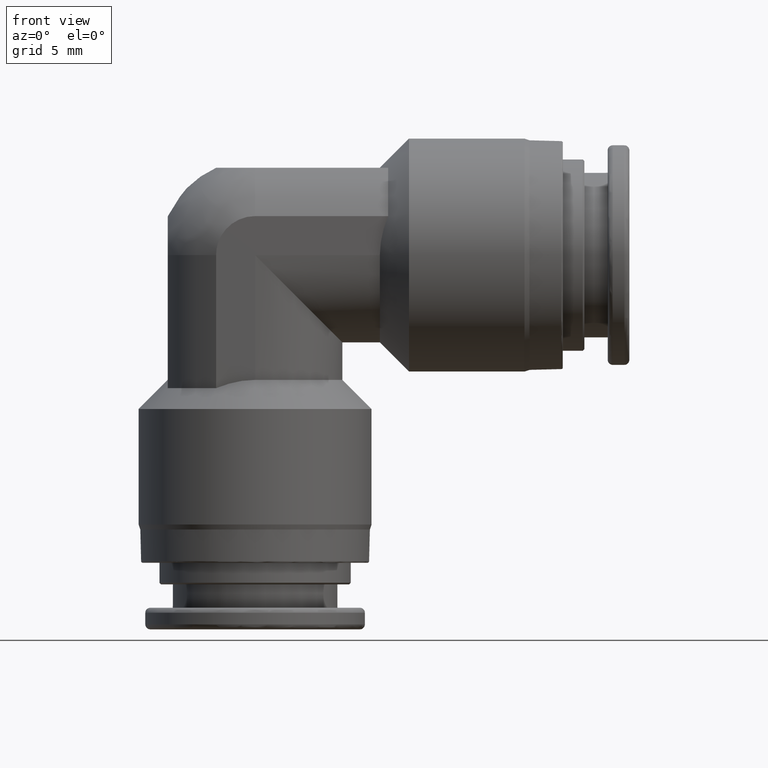
[diagram: clean part render]
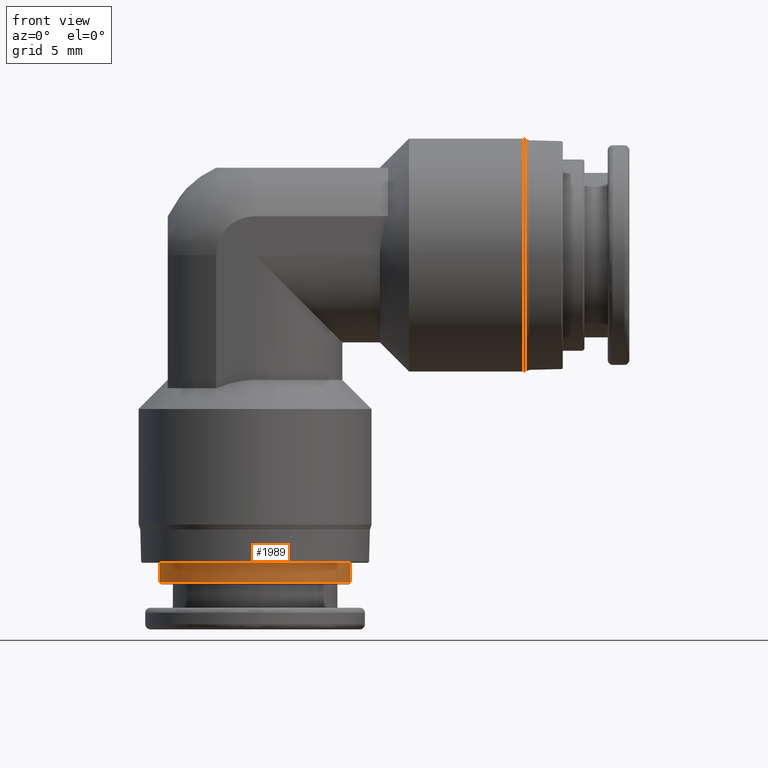
[diagram: same view with one face highlighted and labeled with its STEP entity id]
A machine part, front view. The second image highlights one B-rep face of the part: STEP entity #1989.
In plain terms, the highlighted cylindrical surface (partial cylindrical patch) has radius 5.75 mm, axis along (-0, 0, 1).
Its self-contained STEP definition (entity closure, byte-faithful):
#90 = VECTOR ( 'NONE', #1453, 39.37007874015748100 ) ;
#392 = CIRCLE ( 'NONE', #3135, 0.2263779527559055300 ) ;
#452 = ORIENTED_EDGE ( 'NONE', *, *, #1328, .T. ) ;
#651 = AXIS2_PLACEMENT_3D ( 'NONE', #1713, #1741, #2852 ) ;
#656 = AXIS2_PLACEMENT_3D ( 'NONE', #2709, #1839, #2090 ) ;
#684 = EDGE_CURVE ( 'NONE', #3626, #3101, #2496, .T. ) ;
#685 = VECTOR ( 'NONE', #2345, 39.37007874015748100 ) ;
#830 = LINE ( 'NONE', #1743, #90 ) ;
#903 = DIRECTION ( 'NONE',  ( -2.342906684632550000E-015, 0.0000000000000000000, 1.000000000000000000 ) ) ;
#1054 = EDGE_CURVE ( 'NONE', #2404, #2705, #830, .T. ) ;
#1328 = EDGE_CURVE ( 'NONE', #3626, #2404, #3387, .T. ) ;
#1453 = DIRECTION ( 'NONE',  ( -2.342906684632550000E-015, 0.0000000000000000000, 1.000000000000000000 ) ) ;
#1472 = ORIENTED_EDGE ( 'NONE', *, *, #1054, .T. ) ;
#1482 = CARTESIAN_POINT ( 'NONE',  ( 1.060764837530485400E-015, 0.0000000000000000000, -0.7283464566929128700 ) ) ;
#1713 = CARTESIAN_POINT ( 'NONE',  ( -4.191720272603307400E-016, 0.0000000000000000000, -0.09667944472955669600 ) ) ;
#1741 = DIRECTION ( 'NONE',  ( -2.342906684632550000E-015, 0.0000000000000000000, 1.000000000000000000 ) ) ;
#1743 = CARTESIAN_POINT ( 'NONE',  ( 0.2263779527559051100, 0.0000000000000000000, -0.09667944472955616900 ) ) ;
#1839 = DIRECTION ( 'NONE',  ( -2.342906684632550000E-015, 0.0000000000000000000, 1.000000000000000000 ) ) ;
#1920 = ORIENTED_EDGE ( 'NONE', *, *, #1958, .F. ) ;
#1958 = EDGE_CURVE ( 'NONE', #3101, #2705, #392, .T. ) ;
#1989 = ADVANCED_FACE ( 'NONE', ( #2430 ), #2640, .T. ) ;
#2046 = EDGE_LOOP ( 'NONE', ( #2613, #452, #1472, #1920 ) ) ;
#2090 = DIRECTION ( 'NONE',  ( 1.000000000000000000, 0.0000000000000000000, 2.413528314402514300E-015 ) ) ;
#2321 = CARTESIAN_POINT ( 'NONE',  ( -0.2263779527559044400, 2.772330352400505100E-017, -0.7283464566929134200 ) ) ;
#2345 = DIRECTION ( 'NONE',  ( -2.342906684632550000E-015, 0.0000000000000000000, 1.000000000000000000 ) ) ;
#2404 = VERTEX_POINT ( 'NONE', #3298 ) ;
#2430 = FACE_OUTER_BOUND ( 'NONE', #2046, .T. ) ;
#2496 = LINE ( 'NONE', #3208, #685 ) ;
#2556 = CARTESIAN_POINT ( 'NONE',  ( -0.2263779527572757400, 2.772330352417299200E-017, -0.7755905511811023200 ) ) ;
#2562 = DIRECTION ( 'NONE',  ( 1.000000000000000000, 0.0000000000000000000, 2.413528314402514300E-015 ) ) ;
#2613 = ORIENTED_EDGE ( 'NONE', *, *, #684, .F. ) ;
#2640 = CYLINDRICAL_SURFACE ( 'NONE', #651, 0.2263779527559055300 ) ;
#2705 = VERTEX_POINT ( 'NONE', #3207 ) ;
#2709 = CARTESIAN_POINT ( 'NONE',  ( 1.171453342316275200E-015, 0.0000000000000000000, -0.7755905511811017600 ) ) ;
#2852 = DIRECTION ( 'NONE',  ( 1.000000000000000000, 0.0000000000000000000, 2.338105554577435700E-015 ) ) ;
#3101 = VERTEX_POINT ( 'NONE', #2321 ) ;
#3135 = AXIS2_PLACEMENT_3D ( 'NONE', #1482, #903, #2562 ) ;
#3207 = CARTESIAN_POINT ( 'NONE',  ( 0.2263779527559065800, 0.0000000000000000000, -0.7283464566929123100 ) ) ;
#3208 = CARTESIAN_POINT ( 'NONE',  ( -0.2263779527559059100, 2.772330352400504200E-017, -0.09667944472955722300 ) ) ;
#3298 = CARTESIAN_POINT ( 'NONE',  ( 0.2263779527572780700, 0.0000000000000000000, -0.7755905511811012100 ) ) ;
#3387 = CIRCLE ( 'NONE', #656, 0.2263779527559055300 ) ;
#3626 = VERTEX_POINT ( 'NONE', #2556 ) ;